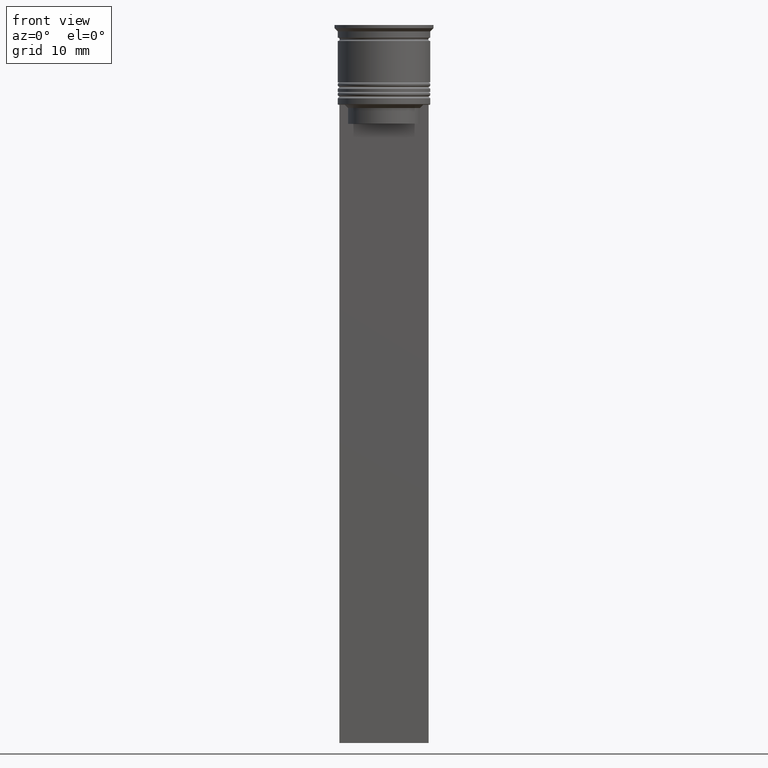
[diagram: clean part render]
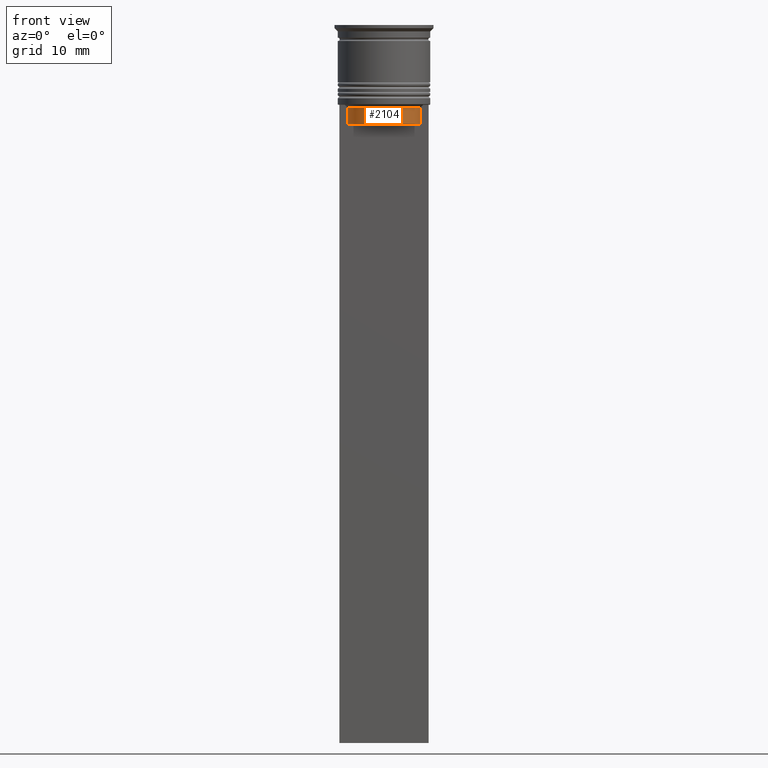
[diagram: same view with one face highlighted and labeled with its STEP entity id]
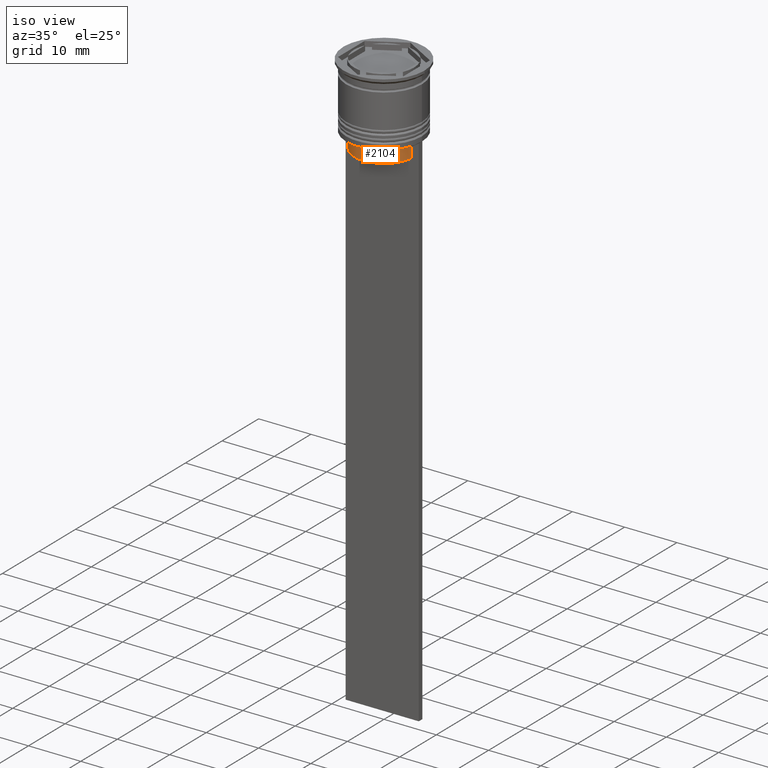
[diagram: same view with one face highlighted and labeled with its STEP entity id]
A machine part, front view. The second image highlights one B-rep face of the part: STEP entity #2104.
A second angle (iso view) of the same face is appended — the face is thin or edge-on in the first view.
In plain terms, the highlighted cylindrical surface (edge-blend (fillet) strip) has radius 5.65 mm, axis along (-0, -0, 1).
Its self-contained STEP definition (entity closure, byte-faithful):
#36 = VECTOR ( 'NONE', #2037, 1000.000000000000000 ) ;
#299 = AXIS2_PLACEMENT_3D ( 'NONE', #932, #1639, #1297 ) ;
#304 = VERTEX_POINT ( 'NONE', #1921 ) ;
#344 = CARTESIAN_POINT ( 'NONE',  ( 5.627832620112292794, -0.5000000000000022204, -13.00000000000000000 ) ) ;
#420 = DIRECTION ( 'NONE',  ( 1.000000000000000000, 0.000000000000000000, 0.000000000000000000 ) ) ;
#422 = DIRECTION ( 'NONE',  ( -0.000000000000000000, -0.000000000000000000, 1.000000000000000000 ) ) ;
#430 = VERTEX_POINT ( 'NONE', #1338 ) ;
#433 = CARTESIAN_POINT ( 'NONE',  ( -5.627832620112292794, -0.5000000000000022204, -15.50000000000000000 ) ) ;
#468 = CARTESIAN_POINT ( 'NONE',  ( 5.627832620112292794, -0.5000000000000022204, 0.000000000000000000 ) ) ;
#487 = VERTEX_POINT ( 'NONE', #433 ) ;
#611 = FACE_OUTER_BOUND ( 'NONE', #649, .T. ) ;
#649 = EDGE_LOOP ( 'NONE', ( #2211, #933, #1830, #699 ) ) ;
#699 = ORIENTED_EDGE ( 'NONE', *, *, #2094, .T. ) ;
#756 = AXIS2_PLACEMENT_3D ( 'NONE', #1161, #422, #2245 ) ;
#790 = DIRECTION ( 'NONE',  ( -0.000000000000000000, -0.000000000000000000, 1.000000000000000000 ) ) ;
#932 = CARTESIAN_POINT ( 'NONE',  ( 0.000000000000000000, 0.000000000000000000, -15.50000000000000000 ) ) ;
#933 = ORIENTED_EDGE ( 'NONE', *, *, #1619, .T. ) ;
#978 = DIRECTION ( 'NONE',  ( -0.000000000000000000, -0.000000000000000000, 1.000000000000000000 ) ) ;
#1067 = VECTOR ( 'NONE', #790, 1000.000000000000000 ) ;
#1161 = CARTESIAN_POINT ( 'NONE',  ( 0.000000000000000000, 0.000000000000000000, -13.00000000000000000 ) ) ;
#1297 = DIRECTION ( 'NONE',  ( 1.000000000000000000, 0.000000000000000000, 0.000000000000000000 ) ) ;
#1321 = LINE ( 'NONE', #1343, #36 ) ;
#1324 = AXIS2_PLACEMENT_3D ( 'NONE', #1872, #978, #420 ) ;
#1338 = CARTESIAN_POINT ( 'NONE',  ( 5.627832620112292794, -0.5000000000000022204, -15.50000000000000000 ) ) ;
#1343 = CARTESIAN_POINT ( 'NONE',  ( -5.627832620112292794, -0.5000000000000022204, 0.000000000000000000 ) ) ;
#1345 = LINE ( 'NONE', #468, #1067 ) ;
#1401 = CIRCLE ( 'NONE', #756, 5.649999999999997691 ) ;
#1457 = EDGE_CURVE ( 'NONE', #487, #430, #2344, .T. ) ;
#1578 = EDGE_CURVE ( 'NONE', #304, #1847, #1401, .T. ) ;
#1619 = EDGE_CURVE ( 'NONE', #430, #1847, #1345, .T. ) ;
#1639 = DIRECTION ( 'NONE',  ( -0.000000000000000000, -0.000000000000000000, 1.000000000000000000 ) ) ;
#1713 = CYLINDRICAL_SURFACE ( 'NONE', #1324, 5.649999999999998579 ) ;
#1830 = ORIENTED_EDGE ( 'NONE', *, *, #1578, .F. ) ;
#1847 = VERTEX_POINT ( 'NONE', #344 ) ;
#1872 = CARTESIAN_POINT ( 'NONE',  ( 0.000000000000000000, 0.000000000000000000, 0.000000000000000000 ) ) ;
#1921 = CARTESIAN_POINT ( 'NONE',  ( -5.627832620112292794, -0.5000000000000022204, -13.00000000000000000 ) ) ;
#2037 = DIRECTION ( 'NONE',  ( 0.000000000000000000, 0.000000000000000000, -1.000000000000000000 ) ) ;
#2094 = EDGE_CURVE ( 'NONE', #304, #487, #1321, .T. ) ;
#2104 = ADVANCED_FACE ( 'NONE', ( #611 ), #1713, .T. ) ;
#2211 = ORIENTED_EDGE ( 'NONE', *, *, #1457, .T. ) ;
#2245 = DIRECTION ( 'NONE',  ( 1.000000000000000000, 0.000000000000000000, 0.000000000000000000 ) ) ;
#2344 = CIRCLE ( 'NONE', #299, 5.649999999999998579 ) ;